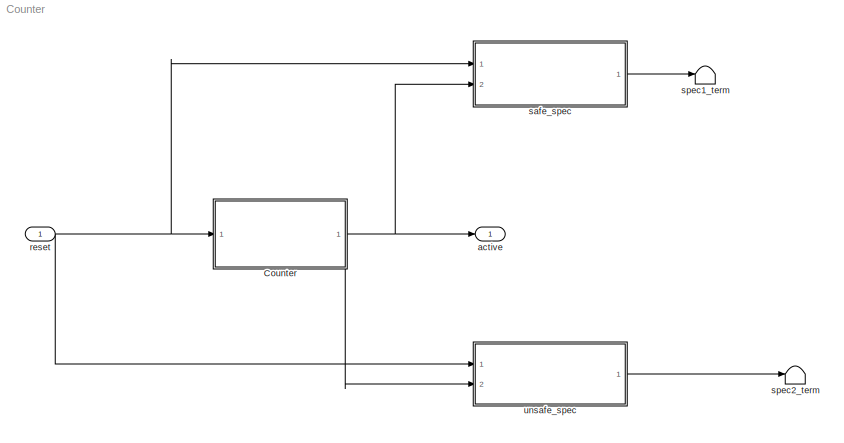
MODEL Counter
KIND model
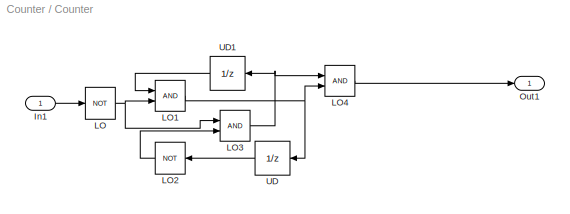
BLOCK [SubSystem] Counter
  Ports = [1, 1]
  RequestExecContextInheritance = off
  SID = 59
BLOCK [Inport] Counter/In1
  IconDisplay = Port number
  SID = 60
BLOCK [Logic] Counter/LO
  AllPortsSameDT = off
  Operator = NOT
  OutDataTypeStr = boolean
  Ports = [1, 1]
  SID = 2
BLOCK [Logic] Counter/LO1
  AllPortsSameDT = off
  OutDataTypeStr = boolean
  Ports = [2, 1]
  SID = 3
BLOCK [Logic] Counter/LO2
  AllPortsSameDT = off
  Operator = NOT
  OutDataTypeStr = boolean
  Ports = [1, 1]
  SID = 4
BLOCK [Logic] Counter/LO3
  AllPortsSameDT = off
  OutDataTypeStr = boolean
  Ports = [2, 1]
  SID = 5
BLOCK [Logic] Counter/LO4
  AllPortsSameDT = off
  OutDataTypeStr = boolean
  Ports = [2, 1]
  SID = 6
BLOCK [Outport] Counter/Out1
  IconDisplay = Port number
  SID = 61
BLOCK [UnitDelay] Counter/UD
  InitialCondition = false
  SID = 7
BLOCK [UnitDelay] Counter/UD1
  InitialCondition = false
  SID = 8
BLOCK [Outport] active
  IconDisplay = Port number
  SID = 24
BLOCK [Inport] reset
  IconDisplay = Port number
  OutDataTypeStr = boolean
  SID = 1
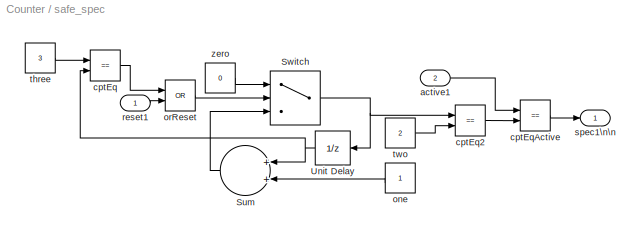
BLOCK [SubSystem] safe_spec
  Ports = [2, 1]
  RequestExecContextInheritance = off
  SID = 62
  TreatAsAtomicUnit = on
BLOCK [Sum] safe_spec/Sum
  InputSameDT = off
  OutDataTypeStr = Inherit: Inherit via internal rule
  Ports = [2, 1]
  SID = 71
  SaturateOnIntegerOverflow = off
BLOCK [Switch] safe_spec/Switch
  Criteria = u2 ~= 0
  InputSameDT = off
  SID = 72
  SaturateOnIntegerOverflow = off
BLOCK [UnitDelay] safe_spec/Unit Delay
  SID = 73
BLOCK [Inport] safe_spec/active1
  IconDisplay = Port number
  Port = 2
  SID = 70
BLOCK [RelationalOperator] safe_spec/cptEq
  InputSameDT = off
  Operator = ==
  OutDataTypeStr = boolean
  Ports = [2, 1]
  SID = 74
BLOCK [RelationalOperator] safe_spec/cptEq2
  InputSameDT = off
  Operator = ==
  OutDataTypeStr = boolean
  Ports = [2, 1]
  SID = 75
BLOCK [RelationalOperator] safe_spec/cptEqActive
  InputSameDT = off
  Operator = ==
  OutDataTypeStr = boolean
  Ports = [2, 1]
  SID = 76
BLOCK [Constant] safe_spec/one
  SID = 77
BLOCK [Logic] safe_spec/orReset
  AllPortsSameDT = off
  Operator = OR
  OutDataTypeStr = boolean
  Ports = [2, 1]
  SID = 78
BLOCK [Inport] safe_spec/reset1
  IconDisplay = Port number
  SID = 69
BLOCK [Outport] safe_spec/spec1\n\n
  IconDisplay = Port number
  SID = 82
BLOCK [Constant] safe_spec/three
  SID = 79
  Value = 3
BLOCK [Constant] safe_spec/two
  SID = 80
  Value = 2
BLOCK [Constant] safe_spec/zero
  SID = 81
  Value = 0
BLOCK [Terminator] spec1_term
  SID = 68
BLOCK [Terminator] spec2_term
  SID = 89
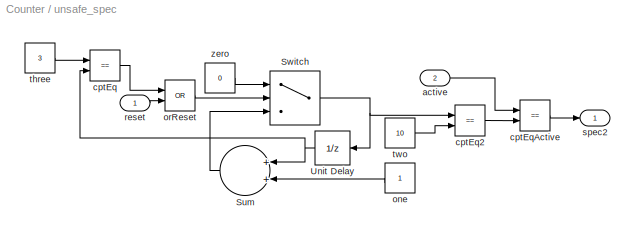
BLOCK [SubSystem] unsafe_spec
  Ports = [2, 1]
  RequestExecContextInheritance = off
  SID = 83
  TreatAsAtomicUnit = on
BLOCK [Sum] unsafe_spec/Sum
  InputSameDT = off
  OutDataTypeStr = Inherit: Inherit via internal rule
  Ports = [2, 1]
  SID = 92
  SaturateOnIntegerOverflow = off
BLOCK [Switch] unsafe_spec/Switch
  Criteria = u2 ~= 0
  InputSameDT = off
  SID = 93
  SaturateOnIntegerOverflow = off
BLOCK [UnitDelay] unsafe_spec/Unit Delay
  SID = 94
BLOCK [Inport] unsafe_spec/active
  IconDisplay = Port number
  Port = 2
  SID = 91
BLOCK [RelationalOperator] unsafe_spec/cptEq
  InputSameDT = off
  Operator = ==
  OutDataTypeStr = boolean
  Ports = [2, 1]
  SID = 95
BLOCK [RelationalOperator] unsafe_spec/cptEq2
  InputSameDT = off
  Operator = ==
  OutDataTypeStr = boolean
  Ports = [2, 1]
  SID = 96
BLOCK [RelationalOperator] unsafe_spec/cptEqActive
  InputSameDT = off
  Operator = ==
  OutDataTypeStr = boolean
  Ports = [2, 1]
  SID = 97
BLOCK [Constant] unsafe_spec/one
  SID = 98
BLOCK [Logic] unsafe_spec/orReset
  AllPortsSameDT = off
  Operator = OR
  OutDataTypeStr = boolean
  Ports = [2, 1]
  SID = 99
BLOCK [Inport] unsafe_spec/reset
  IconDisplay = Port number
  SID = 90
BLOCK [Outport] unsafe_spec/spec2
  IconDisplay = Port number
  SID = 103
BLOCK [Constant] unsafe_spec/three
  SID = 100
  Value = 3
BLOCK [Constant] unsafe_spec/two
  SID = 101
  Value = 10
BLOCK [Constant] unsafe_spec/zero
  SID = 102
  Value = 0
LINE Counter/In1:1 -> Counter/LO:1
NET Counter/LO1:1 -> Counter/LO4:2, Counter/UD:1
LINE Counter/LO2:1 -> Counter/LO3:2
NET Counter/LO3:1 -> Counter/LO4:1, Counter/UD1:1
LINE Counter/LO4:1 -> Counter/Out1:1
NET Counter/LO:1 -> Counter/LO1:2, Counter/LO3:1
LINE Counter/UD1:1 -> Counter/LO1:1
LINE Counter/UD:1 -> Counter/LO2:1
NET Counter:1 -> active:1, safe_spec:2, unsafe_spec:2
NET reset:1 -> Counter:1, safe_spec:1, unsafe_spec:1
LINE safe_spec/Sum:1 -> safe_spec/Switch:3
NET safe_spec/Switch:1 -> safe_spec/Unit Delay:1, safe_spec/cptEq2:1
NET safe_spec/Unit Delay:1 -> safe_spec/Sum:1, safe_spec/cptEq:2
LINE safe_spec/active1:1 -> safe_spec/cptEqActive:1
LINE safe_spec/cptEq2:1 -> safe_spec/cptEqActive:2
LINE safe_spec/cptEq:1 -> safe_spec/orReset:1
LINE safe_spec/cptEqActive:1 -> safe_spec/spec1\n\n:1
LINE safe_spec/one:1 -> safe_spec/Sum:2
LINE safe_spec/orReset:1 -> safe_spec/Switch:2
LINE safe_spec/reset1:1 -> safe_spec/orReset:2
LINE safe_spec/three:1 -> safe_spec/cptEq:1
LINE safe_spec/two:1 -> safe_spec/cptEq2:2
LINE safe_spec/zero:1 -> safe_spec/Switch:1
LINE safe_spec:1 -> spec1_term:1
LINE unsafe_spec/Sum:1 -> unsafe_spec/Switch:3
NET unsafe_spec/Switch:1 -> unsafe_spec/Unit Delay:1, unsafe_spec/cptEq2:1
NET unsafe_spec/Unit Delay:1 -> unsafe_spec/Sum:1, unsafe_spec/cptEq:2
LINE unsafe_spec/active:1 -> unsafe_spec/cptEqActive:1
LINE unsafe_spec/cptEq2:1 -> unsafe_spec/cptEqActive:2
LINE unsafe_spec/cptEq:1 -> unsafe_spec/orReset:1
LINE unsafe_spec/cptEqActive:1 -> unsafe_spec/spec2:1
LINE unsafe_spec/one:1 -> unsafe_spec/Sum:2
LINE unsafe_spec/orReset:1 -> unsafe_spec/Switch:2
LINE unsafe_spec/reset:1 -> unsafe_spec/orReset:2
LINE unsafe_spec/three:1 -> unsafe_spec/cptEq:1
LINE unsafe_spec/two:1 -> unsafe_spec/cptEq2:2
LINE unsafe_spec/zero:1 -> unsafe_spec/Switch:1
LINE unsafe_spec:1 -> spec2_term:1
note: NET lines group one-source signal fan-out (src -> all destinations, sorted); 1:1 wires keep LINE
